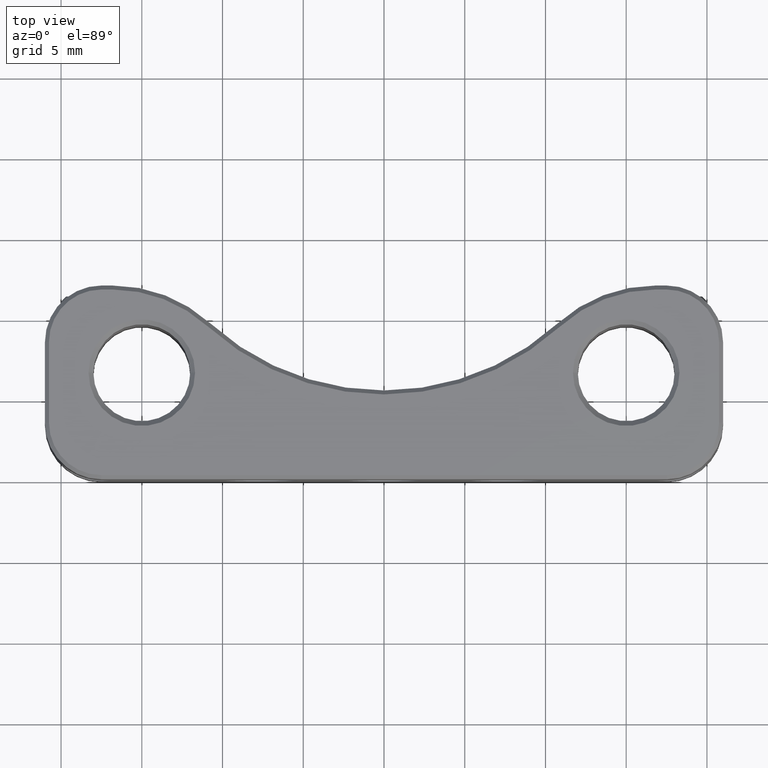
[diagram: clean part render]
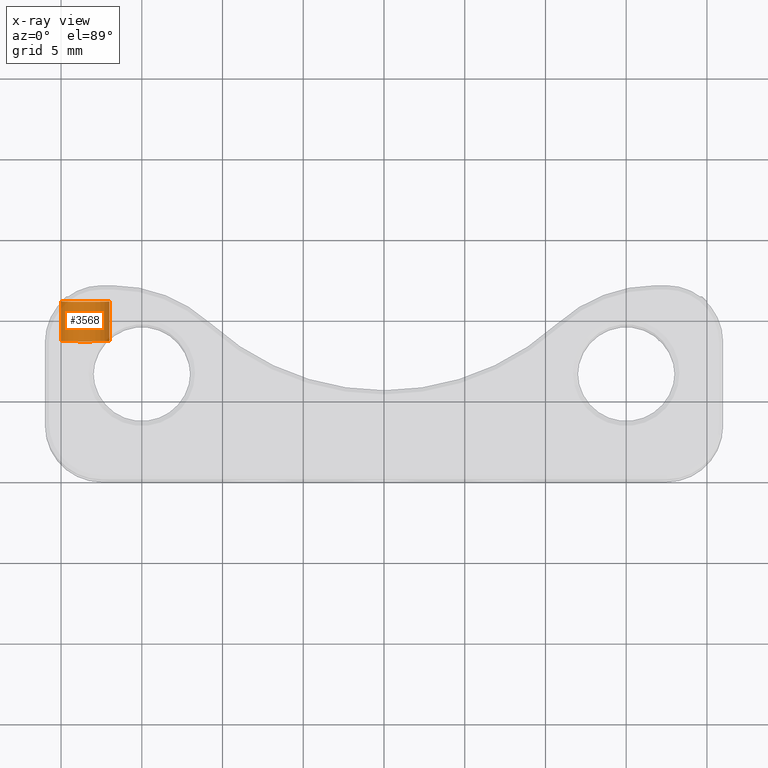
[diagram: x-ray — body ghosted, one internal face saturated and labeled with its STEP entity id]
A machine part, top view, then the same camera in x-ray: the body is ghosted and one INTERNAL B-rep face — a face not visible from any outside direction — is saturated and labeled: STEP entity #3568.
In plain terms, the highlighted cylindrical surface (edge-blend (fillet) strip) has radius 1.5 mm, axis along (-0, 1, 0).
Its self-contained STEP definition (entity closure, byte-faithful):
#70 = LINE ( 'NONE', #5326, #2359 ) ;
#77 = ORIENTED_EDGE ( 'NONE', *, *, #1126, .T. ) ;
#512 = ORIENTED_EDGE ( 'NONE', *, *, #674, .F. ) ;
#674 = EDGE_CURVE ( 'NONE', #4830, #3486, #3037, .T. ) ;
#801 = AXIS2_PLACEMENT_3D ( 'NONE', #4857, #4785, #5238 ) ;
#1036 = AXIS2_PLACEMENT_3D ( 'NONE', #4958, #2722, #5913 ) ;
#1086 = CYLINDRICAL_SURFACE ( 'NONE', #1036, 1.500000000000018208 ) ;
#1126 = EDGE_CURVE ( 'NONE', #1335, #3021, #5409, .T. ) ;
#1255 = EDGE_CURVE ( 'NONE', #3486, #3021, #4738, .T. ) ;
#1335 = VERTEX_POINT ( 'NONE', #4800 ) ;
#1405 = DIRECTION ( 'NONE',  ( -1.524981983519291461E-31, 1.000000000000000000, 1.368017139354438107E-31 ) ) ;
#1773 = DIRECTION ( 'NONE',  ( -0.9971529610187697124, 0.000000000000000000, -0.07540538662124725289 ) ) ;
#2359 = VECTOR ( 'NONE', #2600, 1000.000000000000000 ) ;
#2600 = DIRECTION ( 'NONE',  ( -1.524981983519291461E-31, 1.000000000000000000, 1.368017139354438107E-31 ) ) ;
#2722 = DIRECTION ( 'NONE',  ( -1.524981983519291461E-31, 1.000000000000000000, 1.368017139354438107E-31 ) ) ;
#2805 = FACE_OUTER_BOUND ( 'NONE', #4824, .T. ) ;
#2880 = CARTESIAN_POINT ( 'NONE',  ( -19.99572944152814458, 8.661417094337165778, -0.1131080799318684160 ) ) ;
#3021 = VERTEX_POINT ( 'NONE', #3128 ) ;
#3037 = CIRCLE ( 'NONE', #801, 1.500000000000018208 ) ;
#3093 = VECTOR ( 'NONE', #1405, 1000.000000000000000 ) ;
#3128 = CARTESIAN_POINT ( 'NONE',  ( -17.00427055847183766, 11.11141709433718106, 0.1131080799318735647 ) ) ;
#3486 = VERTEX_POINT ( 'NONE', #5033 ) ;
#3568 = ADVANCED_FACE ( 'NONE', ( #2805 ), #1086, .T. ) ;
#3601 = DIRECTION ( 'NONE',  ( 1.638596143819992720E-31, -1.000000000000000000, -1.235814116069805800E-31 ) ) ;
#3714 = CARTESIAN_POINT ( 'NONE',  ( -17.00427055847183055, 7.411417094337204858, 0.1131080799318739949 ) ) ;
#3978 = ORIENTED_EDGE ( 'NONE', *, *, #5728, .T. ) ;
#4078 = CARTESIAN_POINT ( 'NONE',  ( -18.49999999999999289, 11.11141709433718106, 2.527602701401814623E-14 ) ) ;
#4738 = LINE ( 'NONE', #3714, #3093 ) ;
#4785 = DIRECTION ( 'NONE',  ( 1.524981983519291461E-31, -1.000000000000000000, -1.368017139354438107E-31 ) ) ;
#4800 = CARTESIAN_POINT ( 'NONE',  ( -19.99572944152814458, 11.11141709433718106, -0.1131080799318684160 ) ) ;
#4824 = EDGE_LOOP ( 'NONE', ( #512, #3978, #77, #5168 ) ) ;
#4830 = VERTEX_POINT ( 'NONE', #2880 ) ;
#4857 = CARTESIAN_POINT ( 'NONE',  ( -18.49999999999999289, 8.661417094337165778, 2.527602701401814623E-14 ) ) ;
#4958 = CARTESIAN_POINT ( 'NONE',  ( -18.50000000000000355, 7.411417094337204858, 1.742366600874663305E-15 ) ) ;
#5033 = CARTESIAN_POINT ( 'NONE',  ( -17.00427055847183766, 8.661417094337165778, 0.1131080799318735647 ) ) ;
#5168 = ORIENTED_EDGE ( 'NONE', *, *, #1255, .F. ) ;
#5238 = DIRECTION ( 'NONE',  ( -0.9971529610187697124, 0.000000000000000000, -0.07540538662124725289 ) ) ;
#5326 = CARTESIAN_POINT ( 'NONE',  ( -19.99572944152817655, 7.411417094337204858, -0.1131080799318706920 ) ) ;
#5409 = CIRCLE ( 'NONE', #5822, 1.500000000000018208 ) ;
#5728 = EDGE_CURVE ( 'NONE', #4830, #1335, #70, .T. ) ;
#5822 = AXIS2_PLACEMENT_3D ( 'NONE', #4078, #3601, #1773 ) ;
#5913 = DIRECTION ( 'NONE',  ( 0.9971529610187697124, 0.000000000000000000, 0.07540538662124725289 ) ) ;